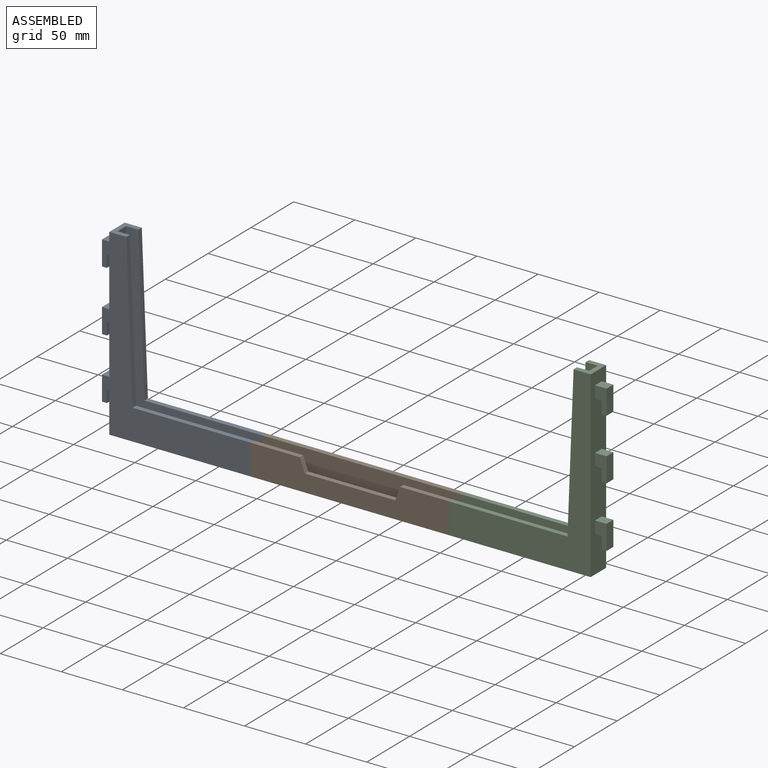
[diagram: assembled view]
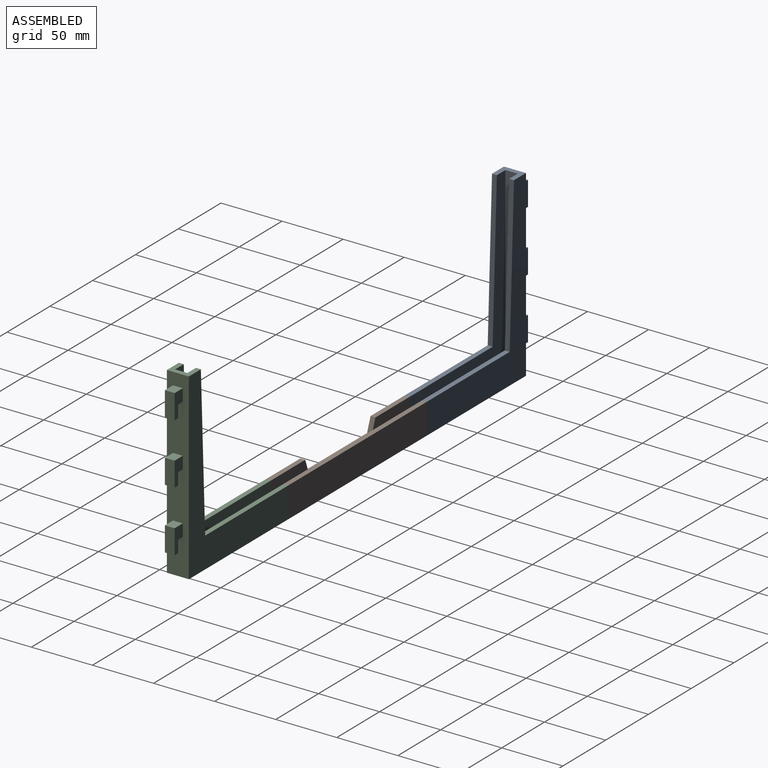
[diagram: assembled view, second angle]
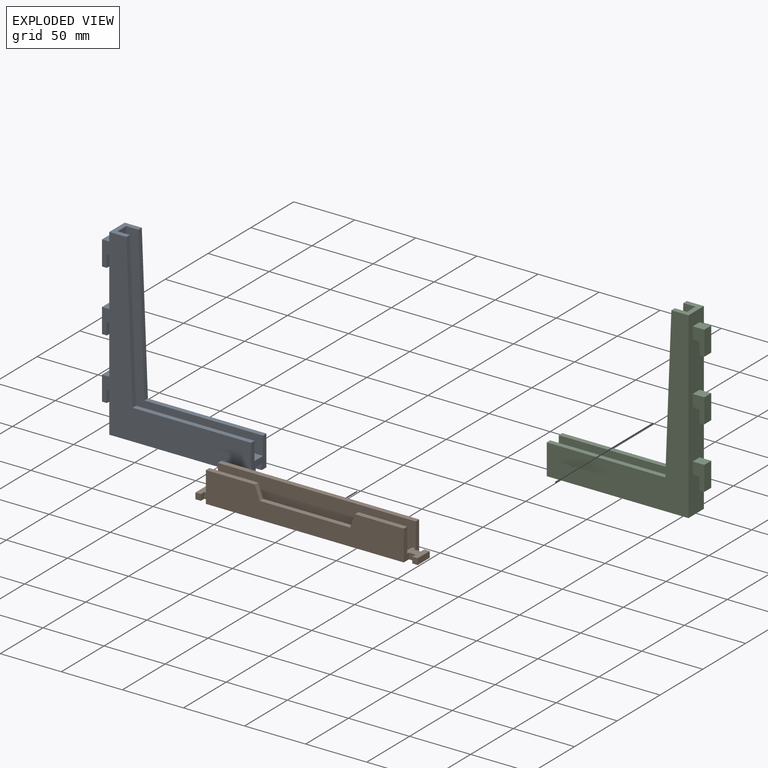
[diagram: exploded view]
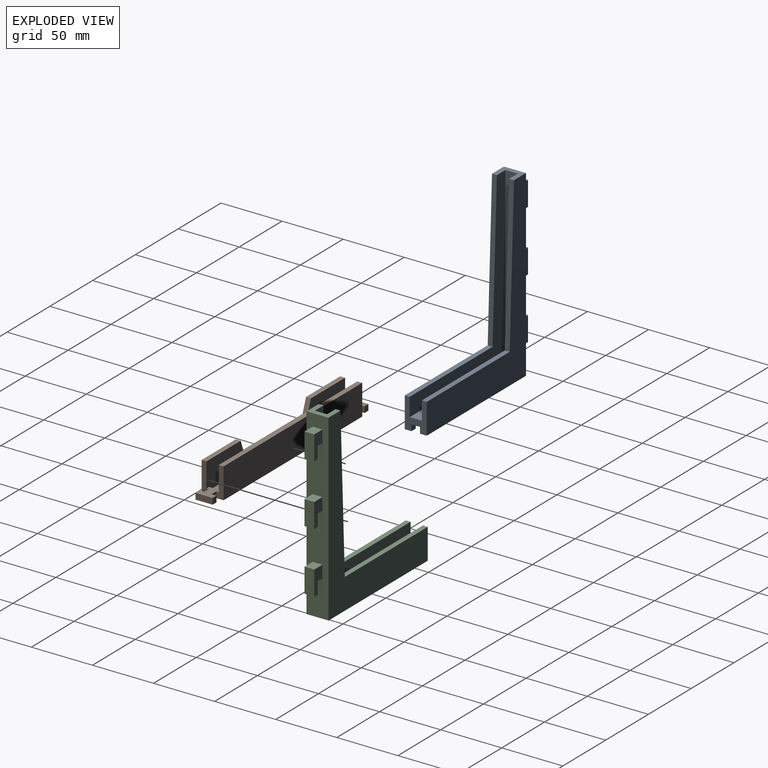
[diagram: exploded view, second angle]
ASSEMBLY  parts=3 mates=2
PART A: 43 faces, bbox 125.5x18x150 mm
  f0: plane 150x18mm, normal (-1,0,0), area 2460mm2, adj f5,f6,f7,f8,f22,f23,f24,f25
  f1: plane 140x10mm, normal (1,0,0), area 1400mm2, adj f7,f10,f11,f12
  f2: plane 97x4mm, normal (0,0,1), area 388mm2, adj f5,f12,f13,f20
  f3: plane 14x5mm, normal (1,0,0), area 70mm2, adj f4,f8,f15,f19
  f4: plane 14x10mm, normal (0,0,-1), area 105mm2, adj f3,f13,f14,f15,f16,f17,f18,f19
  f5: plane 150x116mm, normal (0,-1,0), area 4962.5mm2, adj f0,f2,f7,f8,f13,f20
  f6: plane 150x116mm, normal (0,1,0), area 4962.5mm2, adj f0,f7,f8,f9,f13,f21
  f7: plane 18x14mm, normal (0,0,1), area 152mm2, adj f0,f1,f5,f6,f10,f12,f20,f21
  f8: plane 116x18mm, normal (0,0,-1), area 1983mm2, adj f0,f3,f5,f6,f13,f14,f15,f16
  f9: plane 97x4mm, normal (0,0,1), area 388mm2, adj f6,f10,f13,f21
  f10: plane 140x112mm, normal (0,-1,0), area 3242.5mm2, adj f1,f7,f9,f11,f13,f21
  f11: plane 112x10mm, normal (0,0,1), area 1120mm2, adj f1,f10,f12,f13
  f12: plane 140x112mm, normal (0,1,0), area 3242.5mm2, adj f1,f2,f7,f11,f13,f20
  f13: plane 25x18mm, normal (1,0,0), area 265mm2, adj f2,f4,f5,f6,f8,f9,f10,f11
  f14: plane 5x5mm, normal (0,1,0), area 25mm2, adj f4,f8,f13,f16
  f15: plane 5x5mm, normal (0,1,0), area 25mm2, adj f3,f4,f8,f16
  f16: plane 5x3.5mm, normal (-1,0,0), area 17.5mm2, adj f4,f8,f14,f15
  f17: plane 5x5mm, normal (0,-1,0), area 25mm2, adj f4,f8,f13,f18
  f18: plane 5x3.5mm, normal (-1,0,0), area 17.5mm2, adj f4,f8,f17,f19
  f19: plane 5x5mm, normal (0,-1,0), area 25mm2, adj f3,f4,f8,f18
  f20: plane 125x5mm, normal (1,0,0.04), area 500.4mm2, adj f2,f5,f7,f12
  f21: plane 125x5mm, normal (1,0,0.04), area 500.4mm2, adj f6,f7,f9,f10
  f22: plane 8x5.5mm, normal (0,0,-1), area 44mm2, adj f0,f23,f25,f42
  f23: plane 20x9.5mm, normal (0,-1,0), area 135mm2, adj f0,f22,f24,f40,f41,f42
  f24: plane 9.5x8mm, normal (0,0,1), area 76mm2, adj f0,f23,f25,f41
  f25: plane 20x9.5mm, normal (0,1,0), area 135mm2, adj f0,f22,f24,f40,f41,f42
  f26: plane 8x5.5mm, normal (0,0,-1), area 44mm2, adj f0,f27,f29,f39
  f27: plane 20x9.5mm, normal (0,-1,0), area 135mm2, adj f0,f26,f28,f37,f38,f39
  f28: plane 9.5x8mm, normal (0,0,1), area 76mm2, adj f0,f27,f29,f38
  f29: plane 20x9.5mm, normal (0,1,0), area 135mm2, adj f0,f26,f28,f37,f38,f39
  f30: plane 8x5.5mm, normal (0,0,-1), area 44mm2, adj f0,f31,f33,f36
  f31: plane 20x9.5mm, normal (0,-1,0), area 135mm2, adj f0,f30,f32,f34,f35,f36
  f32: plane 9.5x8mm, normal (0,0,1), area 76mm2, adj f0,f31,f33,f35
  f33: plane 20x9.5mm, normal (0,1,0), area 135mm2, adj f0,f30,f32,f34,f35,f36
  f34: plane 8x4mm, normal (0,0,-1), area 32mm2, adj f31,f33,f35,f36
  f35: plane 20x8mm, normal (-1,0,0), area 160mm2, adj f31,f32,f33,f34
  f36: plane 10x8mm, normal (1,0,0), area 80mm2, adj f30,f31,f33,f34
  f37: plane 8x4mm, normal (0,0,-1), area 32mm2, adj f27,f29,f38,f39
  f38: plane 20x8mm, normal (-1,0,0), area 160mm2, adj f27,f28,f29,f37
  f39: plane 10x8mm, normal (1,0,0), area 80mm2, adj f26,f27,f29,f37
  f40: plane 8x4mm, normal (0,0,-1), area 32mm2, adj f23,f25,f41,f42
  f41: plane 20x8mm, normal (-1,0,0), area 160mm2, adj f23,f24,f25,f40
  f42: plane 10x8mm, normal (1,0,0), area 80mm2, adj f22,f23,f25,f40
PART B: 34 faces, bbox 182x18x25 mm
  f0: plane 14x13mm, normal (0,0,1), area 126mm2, adj f1,f2,f3,f13,f14,f15,f16,f17
  f1: plane 5x4mm, normal (1,0,0), area 20mm2, adj f0,f2,f18,f20
  f2: plane 5.5x5mm, normal (0,-1,0), area 27.5mm2, adj f0,f1,f3,f20
  f3: plane 25x6mm, normal (-1,0,0), area 110mm2, adj f0,f2,f20,f26,f29,f30
  f4: plane 25x6mm, normal (1,0,0), area 110mm2, adj f5,f19,f20,f27,f29,f30
  f5: plane 5.5x5mm, normal (0,-1,0), area 27.5mm2, adj f4,f6,f19,f20
  f6: plane 5x4mm, normal (-1,0,0), area 20mm2, adj f5,f7,f19,f20
  f7: plane 5x4.5mm, normal (0,-1,0), area 22.5mm2, adj f6,f8,f19,f20
  f8: plane 14x5mm, normal (1,0,0), area 70mm2, adj f7,f9,f19,f20
  f9: plane 5x4.5mm, normal (0,1,0), area 22.5mm2, adj f8,f10,f19,f20
  f10: plane 5x4mm, normal (-1,0,0), area 20mm2, adj f9,f11,f19,f20
  f11: plane 5.5x5mm, normal (0,1,0), area 27.5mm2, adj f10,f12,f19,f20
  f12: plane 25x6mm, normal (1,0,0), area 110mm2, adj f11,f19,f20,f31,f32,f33
  f13: plane 25x6mm, normal (-1,0,0), area 110mm2, adj f0,f14,f20,f31,f32,f33
  f14: plane 5.5x5mm, normal (0,1,0), area 27.5mm2, adj f0,f13,f15,f20
  f15: plane 5x4mm, normal (1,0,0), area 20mm2, adj f0,f14,f16,f20
  f16: plane 5x4.5mm, normal (0,1,0), area 22.5mm2, adj f0,f15,f17,f20
  f17: plane 14x5mm, normal (-1,0,0), area 70mm2, adj f0,f16,f18,f20
  f18: plane 5x4.5mm, normal (0,-1,0), area 22.5mm2, adj f0,f1,f17,f20
  f19: plane 14x13mm, normal (0,0,1), area 126mm2, adj f4,f5,f6,f7,f8,f9,f10,f11
  f20: plane 182x18mm, normal (0,0,-1), area 3108mm2, adj f1,f2,f3,f4,f5,f6,f7,f8
  f21: plane 10x2.5mm, normal (1,0,0), area 25mm2, adj f0,f23,f30,f31
  f22: plane 10x2.5mm, normal (-1,0,0), area 25mm2, adj f19,f23,f30,f31
  f23: plane 156x10mm, normal (0,0,1), area 1560mm2, adj f21,f22,f30,f31
  f24: plane 74x4mm, normal (0,0,1), area 296mm2, adj f25,f28,f29,f30
  f25: plane 11x4mm, normal (0.94,0,0.34), area 46.8mm2, adj f24,f26,f29,f30
  f26: plane 40x4mm, normal (0,0,1), area 160mm2, adj f3,f25,f29,f30
  f27: plane 40x4mm, normal (0,0,1), area 160mm2, adj f4,f28,f29,f30
  f28: plane 11x4mm, normal (-0.94,0,0.34), area 46.8mm2, adj f24,f27,f29,f30
  f29: plane 162x25mm, normal (0,-1,0), area 3192mm2, adj f3,f4,f20,f24,f25,f26,f27,f28
  f30: plane 162x22.5mm, normal (0,1,0), area 2772mm2, adj f0,f3,f4,f19,f21,f22,f23,f24
  f31: plane 162x22.5mm, normal (0,-1,0), area 3630mm2, adj f0,f12,f13,f19,f21,f22,f23,f32
  f32: plane 162x4mm, normal (0,0,1), area 648mm2, adj f12,f13,f31,f33
  f33: plane 162x25mm, normal (0,1,0), area 4050mm2, adj f12,f13,f20,f32
PART C: same geometry as A
PLACE A t=(18.81,64.9,-62.57)mm
PLACE B t=(124.81,66.9,-62.57)mm
PLACE C rot(axis=(0,0,1),180deg) t=(412.81,82.9,-62.57)mm
MATE fastened A.f5 <-> B.f29  axis (0,-1,0) through (134.81,64.9,-62.57)mm
MATE fastened C.f6 <-> B.f29  axis (0,-1,0) through (296.81,64.9,-62.57)mm
